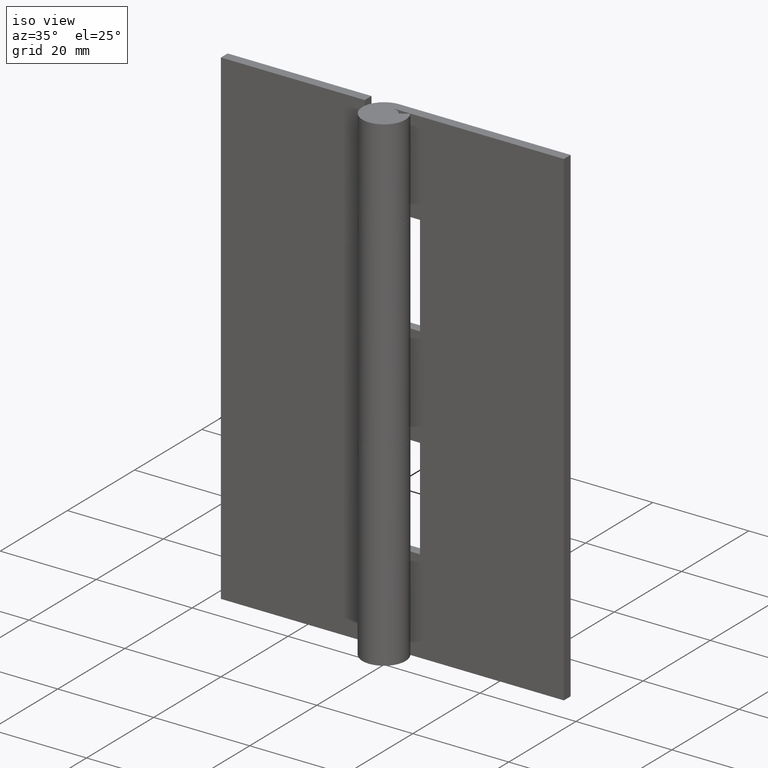
[diagram: clean part render]
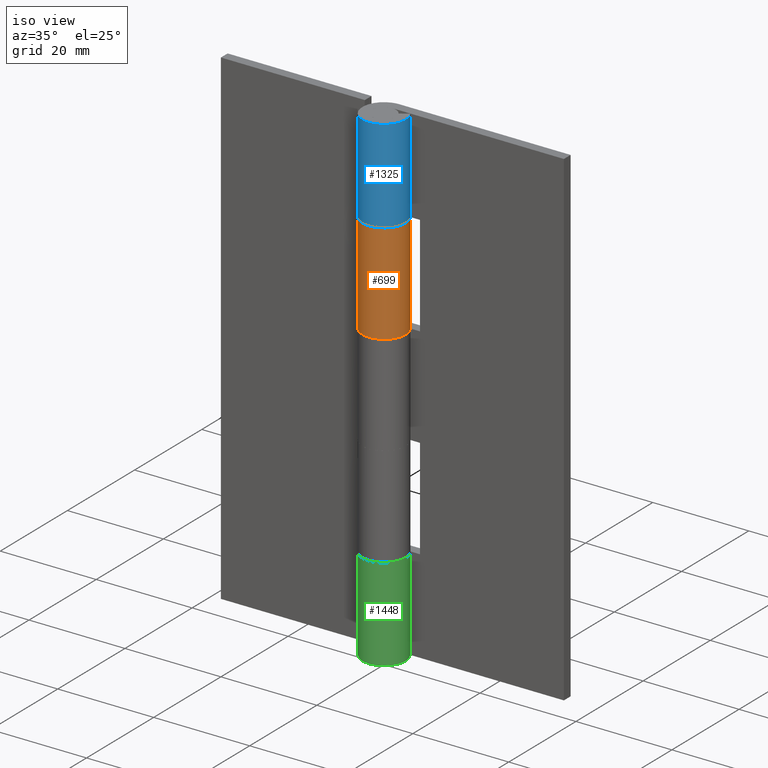
[diagram: same view with three faces highlighted in distinct colors, each labeled with its STEP entity id]
A machine part, iso view with three faces highlighted in distinct colors.
Their STEP definitions:

[orange] entity #699 — the highlighted face is a freeform B-spline surface patch.
#155=CARTESIAN_POINT('',(-3.774586070021455,2.450000000000000,61.500008000000001));
#156=VERTEX_POINT('',#155);
#157=CARTESIAN_POINT('',(0.0,4.499999999999949,61.500008000000001));
#158=VERTEX_POINT('',#157);
#159=CARTESIAN_POINT('',(-3.774586070021452,2.450000000000001,61.500008000000001));
#160=CARTESIAN_POINT('',(-5.680028716683057,-0.485615212781099,61.500007999999987));
#161=CARTESIAN_POINT('',(-3.303919729592088,-3.055178296010257,61.500008000000001));
#162=CARTESIAN_POINT('',(-0.927810742501120,-5.624741379239415,61.500007999999987));
#163=CARTESIAN_POINT('',(2.147673159491448,-3.954427897939223,61.500008000000001));
#164=CARTESIAN_POINT('',(5.223157061484022,-2.284114416639028,61.500007999999987));
#165=CARTESIAN_POINT('',(4.361474838900626,1.107942791680489,61.500008000000001));
#166=CARTESIAN_POINT('',(3.499792616317231,4.499999999999999,61.500007999999987));
#167=CARTESIAN_POINT('',(0.0,4.500000000000000,61.500008000000001));
#175=(BOUNDED_CURVE()B_SPLINE_CURVE(2,(#159,#160,#161,#162,#163,#164,#165,#166,#167),.UNSPECIFIED.,.F.,.U.)B_SPLINE_CURVE_WITH_KNOTS((3,2,2,2,3),(0.0,0.250000000000000,0.500000000000000,0.750000000000000,1.0),.UNSPECIFIED.)CURVE()GEOMETRIC_REPRESENTATION_ITEM()RATIONAL_B_SPLINE_CURVE((1.0,0.789369846542903,1.0,0.789369846542903,1.0,0.789369846542903,1.0,0.789369846542903,1.0))REPRESENTATION_ITEM(''));
#176=EDGE_CURVE('',#156,#158,#175,.T.);
#333=CARTESIAN_POINT('',(0.0,4.499999999999949,82.500007999999994));
#334=VERTEX_POINT('',#333);
#375=CARTESIAN_POINT('',(-3.774586070021455,2.450000000000000,82.500007999999994));
#376=VERTEX_POINT('',#375);
#382=CARTESIAN_POINT('',(0.0,4.500000000000000,82.500007999999994));
#383=CARTESIAN_POINT('',(3.499792616317230,4.499999999999999,82.500007999999994));
#384=CARTESIAN_POINT('',(4.361474838900626,1.107942791680491,82.500007999999994));
#385=CARTESIAN_POINT('',(5.223157061484022,-2.284114416639020,82.500007999999994));
#386=CARTESIAN_POINT('',(2.147673159491454,-3.954427897939219,82.500007999999994));
#387=CARTESIAN_POINT('',(-0.927810742501114,-5.624741379239418,82.500007999999994));
#388=CARTESIAN_POINT('',(-3.303919729592086,-3.055178296010259,82.500007999999994));
#389=CARTESIAN_POINT('',(-5.680028716683055,-0.485615212781102,82.500007999999994));
#390=CARTESIAN_POINT('',(-3.774586070021454,2.449999999999998,82.500007999999994));
#398=(BOUNDED_CURVE()B_SPLINE_CURVE(2,(#382,#383,#384,#385,#386,#387,#388,#389,#390),.UNSPECIFIED.,.F.,.U.)B_SPLINE_CURVE_WITH_KNOTS((3,2,2,2,3),(0.0,0.250000000000000,0.500000000000000,0.750000000000000,1.0),.UNSPECIFIED.)CURVE()GEOMETRIC_REPRESENTATION_ITEM()RATIONAL_B_SPLINE_CURVE((1.0,0.789369846542903,1.0,0.789369846542903,1.0,0.789369846542903,1.0,0.789369846542903,1.0))REPRESENTATION_ITEM(''));
#399=EDGE_CURVE('',#334,#376,#398,.T.);
#625=CARTESIAN_POINT('',(-3.774586070021455,2.450000000000000,82.500007999999994));
#626=CARTESIAN_POINT('',(-3.774586070021455,2.450000000000000,61.500008000000001));
#627=QUASI_UNIFORM_CURVE('',1,(#625,#626),.UNSPECIFIED.,.F.,.U.);
#628=EDGE_CURVE('',#376,#156,#627,.T.);
#667=CARTESIAN_POINT('',(-3.708567848799069,2.548828066161747,83.025008000000014));
#668=CARTESIAN_POINT('',(-3.708567848799069,2.548828066161747,60.961882999999993));
#669=CARTESIAN_POINT('',(-6.912883888284786,-2.113480702009903,83.025008000000014));
#670=CARTESIAN_POINT('',(-6.912883888284786,-2.113480702009903,60.961882999999986));
#671=CARTESIAN_POINT('',(-1.649255520259336,-4.186879055919110,83.025008000000014));
#672=CARTESIAN_POINT('',(-1.649255520259336,-4.186879055919110,60.961882999999993));
#673=CARTESIAN_POINT('',(3.614372847766115,-6.260277409828316,83.025008000000014));
#674=CARTESIAN_POINT('',(3.614372847766115,-6.260277409828316,60.961882999999986));
#675=CARTESIAN_POINT('',(4.450571385128624,-0.665142350083245,83.025008000000014));
#676=CARTESIAN_POINT('',(4.450571385128624,-0.665142350083245,60.961882999999993));
#677=CARTESIAN_POINT('',(5.286769922491132,4.929992709661827,83.025008000000014));
#678=CARTESIAN_POINT('',(5.286769922491132,4.929992709661827,60.961882999999986));
#679=CARTESIAN_POINT('',(-0.353065930775307,4.486128001799074,83.025008000000014));
#680=CARTESIAN_POINT('',(-0.353065930775307,4.486128001799074,60.961882999999993));
#688=(BOUNDED_SURFACE()B_SPLINE_SURFACE(1,2,((#667,#669,#671,#673,#675,#677,#679),(#668,#670,#672,#674,#676,#678,#680)),.UNSPECIFIED.,.F.,.F.,.U.)B_SPLINE_SURFACE_WITH_KNOTS((2,2),(3,2,2,3),(0.0,22.063125000000031),(0.0,8.682169334716267,17.364338669432531,26.046508004148802),.UNSPECIFIED.)GEOMETRIC_REPRESENTATION_ITEM()RATIONAL_B_SPLINE_SURFACE(((1.0,0.622514636637620,1.0,0.622514636637620,1.0,0.622514636637620,1.0),(1.0,0.622514636637620,1.0,0.622514636637620,1.0,0.622514636637620,1.0)))REPRESENTATION_ITEM('')SURFACE());
#689=ORIENTED_EDGE('',*,*,#176,.T.);
#690=CARTESIAN_POINT('',(0.0,4.499999999999949,82.500007999999994));
#691=CARTESIAN_POINT('',(0.0,4.499999999999949,61.500008000000001));
#692=QUASI_UNIFORM_CURVE('',1,(#690,#691),.UNSPECIFIED.,.F.,.U.);
#693=EDGE_CURVE('',#334,#158,#692,.T.);
#694=ORIENTED_EDGE('',*,*,#693,.F.);
#695=ORIENTED_EDGE('',*,*,#399,.T.);
#696=ORIENTED_EDGE('',*,*,#628,.T.);
#697=EDGE_LOOP('',(#689,#694,#695,#696));
#698=FACE_OUTER_BOUND('',#697,.T.);
#699=ADVANCED_FACE('',(#698),#688,.T.);

[blue] entity #1325 — the highlighted face is a freeform B-spline surface patch.
#1071=CARTESIAN_POINT('',(3.774586070021455,2.450000000000000,82.500007999999994));
#1072=VERTEX_POINT('',#1071);
#1078=CARTESIAN_POINT('',(0.0,4.499999999999949,82.500007999999994));
#1079=VERTEX_POINT('',#1078);
#1080=CARTESIAN_POINT('',(0.0,4.500000000000000,82.500007999999994));
#1081=CARTESIAN_POINT('',(-3.499792616317230,4.499999999999999,82.500007999999994));
#1082=CARTESIAN_POINT('',(-4.361474838900626,1.107942791680491,82.500007999999994));
#1083=CARTESIAN_POINT('',(-5.223157061484022,-2.284114416639020,82.500007999999994));
#1084=CARTESIAN_POINT('',(-2.147673159491454,-3.954427897939219,82.500007999999994));
#1085=CARTESIAN_POINT('',(0.927810742501114,-5.624741379239418,82.500007999999994));
#1086=CARTESIAN_POINT('',(3.303919729592086,-3.055178296010259,82.500007999999994));
#1087=CARTESIAN_POINT('',(5.680028716683055,-0.485615212781102,82.500007999999994));
#1088=CARTESIAN_POINT('',(3.774586070021454,2.449999999999998,82.500007999999994));
#1096=(BOUNDED_CURVE()B_SPLINE_CURVE(2,(#1080,#1081,#1082,#1083,#1084,#1085,#1086,#1087,#1088),.UNSPECIFIED.,.F.,.U.)B_SPLINE_CURVE_WITH_KNOTS((3,2,2,2,3),(0.0,0.250000000000000,0.500000000000000,0.750000000000000,1.0),.UNSPECIFIED.)CURVE()GEOMETRIC_REPRESENTATION_ITEM()RATIONAL_B_SPLINE_CURVE((1.0,0.789369846542903,1.0,0.789369846542903,1.0,0.789369846542903,1.0,0.789369846542903,1.0))REPRESENTATION_ITEM(''));
#1097=EDGE_CURVE('',#1079,#1072,#1096,.T.);
#1196=CARTESIAN_POINT('',(-8.266093E-016,4.500000000000000,102.000007999999990));
#1197=VERTEX_POINT('',#1196);
#1205=CARTESIAN_POINT('',(3.774586070021455,2.450000000000000,102.000007999999990));
#1206=VERTEX_POINT('',#1205);
#1207=CARTESIAN_POINT('',(3.774586070021452,2.450000000000001,102.000007999999990));
#1208=CARTESIAN_POINT('',(5.680028716683057,-0.485615212781099,102.000007999999990));
#1209=CARTESIAN_POINT('',(3.303919729592088,-3.055178296010257,102.000007999999990));
#1210=CARTESIAN_POINT('',(0.927810742501120,-5.624741379239415,102.000007999999990));
#1211=CARTESIAN_POINT('',(-2.147673159491448,-3.954427897939223,102.000007999999990));
#1212=CARTESIAN_POINT('',(-5.223157061484022,-2.284114416639028,102.000007999999990));
#1213=CARTESIAN_POINT('',(-4.361474838900626,1.107942791680489,102.000007999999990));
#1214=CARTESIAN_POINT('',(-3.499792616317231,4.499999999999999,102.000007999999990));
#1215=CARTESIAN_POINT('',(0.0,4.500000000000000,102.000007999999990));
#1223=(BOUNDED_CURVE()B_SPLINE_CURVE(2,(#1207,#1208,#1209,#1210,#1211,#1212,#1213,#1214,#1215),.UNSPECIFIED.,.F.,.U.)B_SPLINE_CURVE_WITH_KNOTS((3,2,2,2,3),(0.0,0.250000000000000,0.500000000000000,0.750000000000000,1.0),.UNSPECIFIED.)CURVE()GEOMETRIC_REPRESENTATION_ITEM()RATIONAL_B_SPLINE_CURVE((1.0,0.789369846542903,1.0,0.789369846542903,1.0,0.789369846542903,1.0,0.789369846542903,1.0))REPRESENTATION_ITEM(''));
#1224=EDGE_CURVE('',#1206,#1197,#1223,.T.);
#1289=CARTESIAN_POINT('',(0.117796267385435,4.498457962390006,102.487508000000010));
#1290=CARTESIAN_POINT('',(0.117796267385435,4.498457962390006,82.000320499999987));
#1291=CARTESIAN_POINT('',(-5.470496354798926,4.644792554700197,102.487508000000010));
#1292=CARTESIAN_POINT('',(-5.470496354798926,4.644792554700197,82.000320500000001));
#1293=CARTESIAN_POINT('',(-4.419801317117837,-0.845787394800499,102.487508000000010));
#1294=CARTESIAN_POINT('',(-4.419801317117837,-0.845787394800499,82.000320499999987));
#1295=CARTESIAN_POINT('',(-3.369106279436748,-6.336367344301195,102.487508000000010));
#1296=CARTESIAN_POINT('',(-3.369106279436748,-6.336367344301195,82.000320500000001));
#1297=CARTESIAN_POINT('',(1.770332002599889,-4.137139664136400,102.487508000000010));
#1298=CARTESIAN_POINT('',(1.770332002599889,-4.137139664136400,82.000320499999987));
#1299=CARTESIAN_POINT('',(6.909770284636527,-1.937911983971606,102.487508000000010));
#1300=CARTESIAN_POINT('',(6.909770284636527,-1.937911983971606,82.000320500000001));
#1301=CARTESIAN_POINT('',(3.663519832603436,2.613163300699226,102.487508000000010));
#1302=CARTESIAN_POINT('',(3.663519832603436,2.613163300699226,82.000320499999987));
#1310=(BOUNDED_SURFACE()B_SPLINE_SURFACE(1,2,((#1289,#1291,#1293,#1295,#1297,#1299,#1301),(#1290,#1292,#1294,#1296,#1298,#1300,#1302)),.UNSPECIFIED.,.F.,.F.,.U.)B_SPLINE_SURFACE_WITH_KNOTS((2,2),(3,2,2,3),(0.0,20.487187500000040),(0.0,8.617717943547360,17.235435887094720,25.853153830642079),.UNSPECIFIED.)GEOMETRIC_REPRESENTATION_ITEM()RATIONAL_B_SPLINE_SURFACE(((1.0,0.627057105746662,1.0,0.627057105746662,1.0,0.627057105746662,1.0),(1.0,0.627057105746662,1.0,0.627057105746662,1.0,0.627057105746662,1.0)))REPRESENTATION_ITEM('')SURFACE());
#1311=ORIENTED_EDGE('',*,*,#1097,.T.);
#1312=CARTESIAN_POINT('',(3.774586070021455,2.450000000000000,102.000007999999990));
#1313=CARTESIAN_POINT('',(3.774586070021455,2.450000000000000,82.500007999999994));
#1314=QUASI_UNIFORM_CURVE('',1,(#1312,#1313),.UNSPECIFIED.,.F.,.U.);
#1315=EDGE_CURVE('',#1206,#1072,#1314,.T.);
#1316=ORIENTED_EDGE('',*,*,#1315,.F.);
#1317=ORIENTED_EDGE('',*,*,#1224,.T.);
#1318=CARTESIAN_POINT('',(-8.266093E-016,4.500000000000000,102.000007999999990));
#1319=CARTESIAN_POINT('',(0.0,4.499999999999949,82.500007999999994));
#1320=QUASI_UNIFORM_CURVE('',1,(#1318,#1319),.UNSPECIFIED.,.F.,.U.);
#1321=EDGE_CURVE('',#1197,#1079,#1320,.T.);
#1322=ORIENTED_EDGE('',*,*,#1321,.T.);
#1323=EDGE_LOOP('',(#1311,#1316,#1317,#1322));
#1324=FACE_OUTER_BOUND('',#1323,.T.);
#1325=ADVANCED_FACE('',(#1324),#1310,.T.);

[green] entity #1448 — the highlighted face is a freeform B-spline surface patch.
#873=CARTESIAN_POINT('',(0.0,4.499999999999949,19.500000000000000));
#874=VERTEX_POINT('',#873);
#880=CARTESIAN_POINT('',(3.774586070021455,2.450000000000000,19.500000000000000));
#881=VERTEX_POINT('',#880);
#882=CARTESIAN_POINT('',(3.774586070021452,2.450000000000001,19.500000000000000));
#883=CARTESIAN_POINT('',(5.680028716683057,-0.485615212781099,19.500000000000000));
#884=CARTESIAN_POINT('',(3.303919729592088,-3.055178296010257,19.500000000000000));
#885=CARTESIAN_POINT('',(0.927810742501120,-5.624741379239415,19.500000000000000));
#886=CARTESIAN_POINT('',(-2.147673159491448,-3.954427897939223,19.500000000000000));
#887=CARTESIAN_POINT('',(-5.223157061484022,-2.284114416639028,19.500000000000000));
#888=CARTESIAN_POINT('',(-4.361474838900626,1.107942791680489,19.500000000000000));
#889=CARTESIAN_POINT('',(-3.499792616317231,4.499999999999999,19.500000000000000));
#890=CARTESIAN_POINT('',(0.0,4.499999999999949,19.500000000000000));
#898=(BOUNDED_CURVE()B_SPLINE_CURVE(2,(#882,#883,#884,#885,#886,#887,#888,#889,#890),.UNSPECIFIED.,.F.,.U.)B_SPLINE_CURVE_WITH_KNOTS((3,2,2,2,3),(0.0,0.250000000000000,0.500000000000000,0.750000000000000,1.0),.UNSPECIFIED.)CURVE()GEOMETRIC_REPRESENTATION_ITEM()RATIONAL_B_SPLINE_CURVE((1.0,0.789369846542903,1.0,0.789369846542903,1.0,0.789369846542903,1.0,0.789369846542903,1.0))REPRESENTATION_ITEM(''));
#899=EDGE_CURVE('',#881,#874,#898,.T.);
#1118=CARTESIAN_POINT('',(-8.266093E-016,4.500000000000000,0.0));
#1119=VERTEX_POINT('',#1118);
#1162=CARTESIAN_POINT('',(3.774586070021455,2.450000000000000,0.0));
#1163=VERTEX_POINT('',#1162);
#1169=CARTESIAN_POINT('',(3.774586070021452,2.450000000000001,0.0));
#1170=CARTESIAN_POINT('',(5.680028716683057,-0.485615212781099,0.0));
#1171=CARTESIAN_POINT('',(3.303919729592088,-3.055178296010257,0.0));
#1172=CARTESIAN_POINT('',(0.927810742501120,-5.624741379239415,0.0));
#1173=CARTESIAN_POINT('',(-2.147673159491448,-3.954427897939223,0.0));
#1174=CARTESIAN_POINT('',(-5.223157061484022,-2.284114416639028,0.0));
#1175=CARTESIAN_POINT('',(-4.361474838900626,1.107942791680489,0.0));
#1176=CARTESIAN_POINT('',(-3.499792616317231,4.499999999999999,0.0));
#1177=CARTESIAN_POINT('',(0.0,4.500000000000000,0.0));
#1185=(BOUNDED_CURVE()B_SPLINE_CURVE(2,(#1169,#1170,#1171,#1172,#1173,#1174,#1175,#1176,#1177),.UNSPECIFIED.,.F.,.U.)B_SPLINE_CURVE_WITH_KNOTS((3,2,2,2,3),(0.0,0.250000000000000,0.500000000000000,0.750000000000000,1.0),.UNSPECIFIED.)CURVE()GEOMETRIC_REPRESENTATION_ITEM()RATIONAL_B_SPLINE_CURVE((1.0,0.789369846542903,1.0,0.789369846542903,1.0,0.789369846542903,1.0,0.789369846542903,1.0))REPRESENTATION_ITEM(''));
#1186=EDGE_CURVE('',#1163,#1119,#1185,.T.);
#1412=CARTESIAN_POINT('',(0.039269409742679,4.499828653788769,19.987500000000001));
#1413=CARTESIAN_POINT('',(0.039269409742679,4.499828653788769,-0.499687500000000));
#1414=CARTESIAN_POINT('',(-5.517556199716018,4.548322336218813,19.987500000000001));
#1415=CARTESIAN_POINT('',(-5.517556199716018,4.548322336218813,-0.499687500000000));
#1416=CARTESIAN_POINT('',(-4.409661170793731,-0.897155704877389,19.987500000000001));
#1417=CARTESIAN_POINT('',(-4.409661170793731,-0.897155704877389,-0.499687500000000));
#1418=CARTESIAN_POINT('',(-3.301766141871445,-6.342633745973590,19.987500000000001));
#1419=CARTESIAN_POINT('',(-3.301766141871445,-6.342633745973590,-0.499687500000000));
#1420=CARTESIAN_POINT('',(1.794370810163608,-4.126770334733057,19.987500000000001));
#1421=CARTESIAN_POINT('',(1.794370810163608,-4.126770334733057,-0.499687500000000));
#1422=CARTESIAN_POINT('',(6.890507762198659,-1.910906923492522,19.987500000000001));
#1423=CARTESIAN_POINT('',(6.890507762198659,-1.910906923492522,-0.499687500000000));
#1424=CARTESIAN_POINT('',(3.663519832603436,2.613163300699227,19.987500000000001));
#1425=CARTESIAN_POINT('',(3.663519832603436,2.613163300699227,-0.499687500000000));
#1433=(BOUNDED_SURFACE()B_SPLINE_SURFACE(1,2,((#1412,#1414,#1416,#1418,#1420,#1422,#1424),(#1413,#1415,#1417,#1419,#1421,#1423,#1425)),.UNSPECIFIED.,.F.,.F.,.U.)B_SPLINE_SURFACE_WITH_KNOTS((2,2),(3,2,2,3),(0.0,20.487187500000012),(0.0,8.585559588566879,17.171119177133761,25.756678765700631),.UNSPECIFIED.)GEOMETRIC_REPRESENTATION_ITEM()RATIONAL_B_SPLINE_SURFACE(((1.0,0.629320391049838,1.0,0.629320391049838,1.0,0.629320391049838,1.0),(1.0,0.629320391049838,1.0,0.629320391049838,1.0,0.629320391049838,1.0)))REPRESENTATION_ITEM('')SURFACE());
#1434=ORIENTED_EDGE('',*,*,#899,.T.);
#1435=CARTESIAN_POINT('',(0.0,4.499999999999949,19.500000000000000));
#1436=CARTESIAN_POINT('',(-8.266093E-016,4.500000000000000,0.0));
#1437=QUASI_UNIFORM_CURVE('',1,(#1435,#1436),.UNSPECIFIED.,.F.,.U.);
#1438=EDGE_CURVE('',#874,#1119,#1437,.T.);
#1439=ORIENTED_EDGE('',*,*,#1438,.T.);
#1440=ORIENTED_EDGE('',*,*,#1186,.F.);
#1441=CARTESIAN_POINT('',(3.774586070021455,2.450000000000000,19.500000000000000));
#1442=CARTESIAN_POINT('',(3.774586070021455,2.450000000000000,0.0));
#1443=QUASI_UNIFORM_CURVE('',1,(#1441,#1442),.UNSPECIFIED.,.F.,.U.);
#1444=EDGE_CURVE('',#881,#1163,#1443,.T.);
#1445=ORIENTED_EDGE('',*,*,#1444,.F.);
#1446=EDGE_LOOP('',(#1434,#1439,#1440,#1445));
#1447=FACE_OUTER_BOUND('',#1446,.T.);
#1448=ADVANCED_FACE('',(#1447),#1433,.T.);